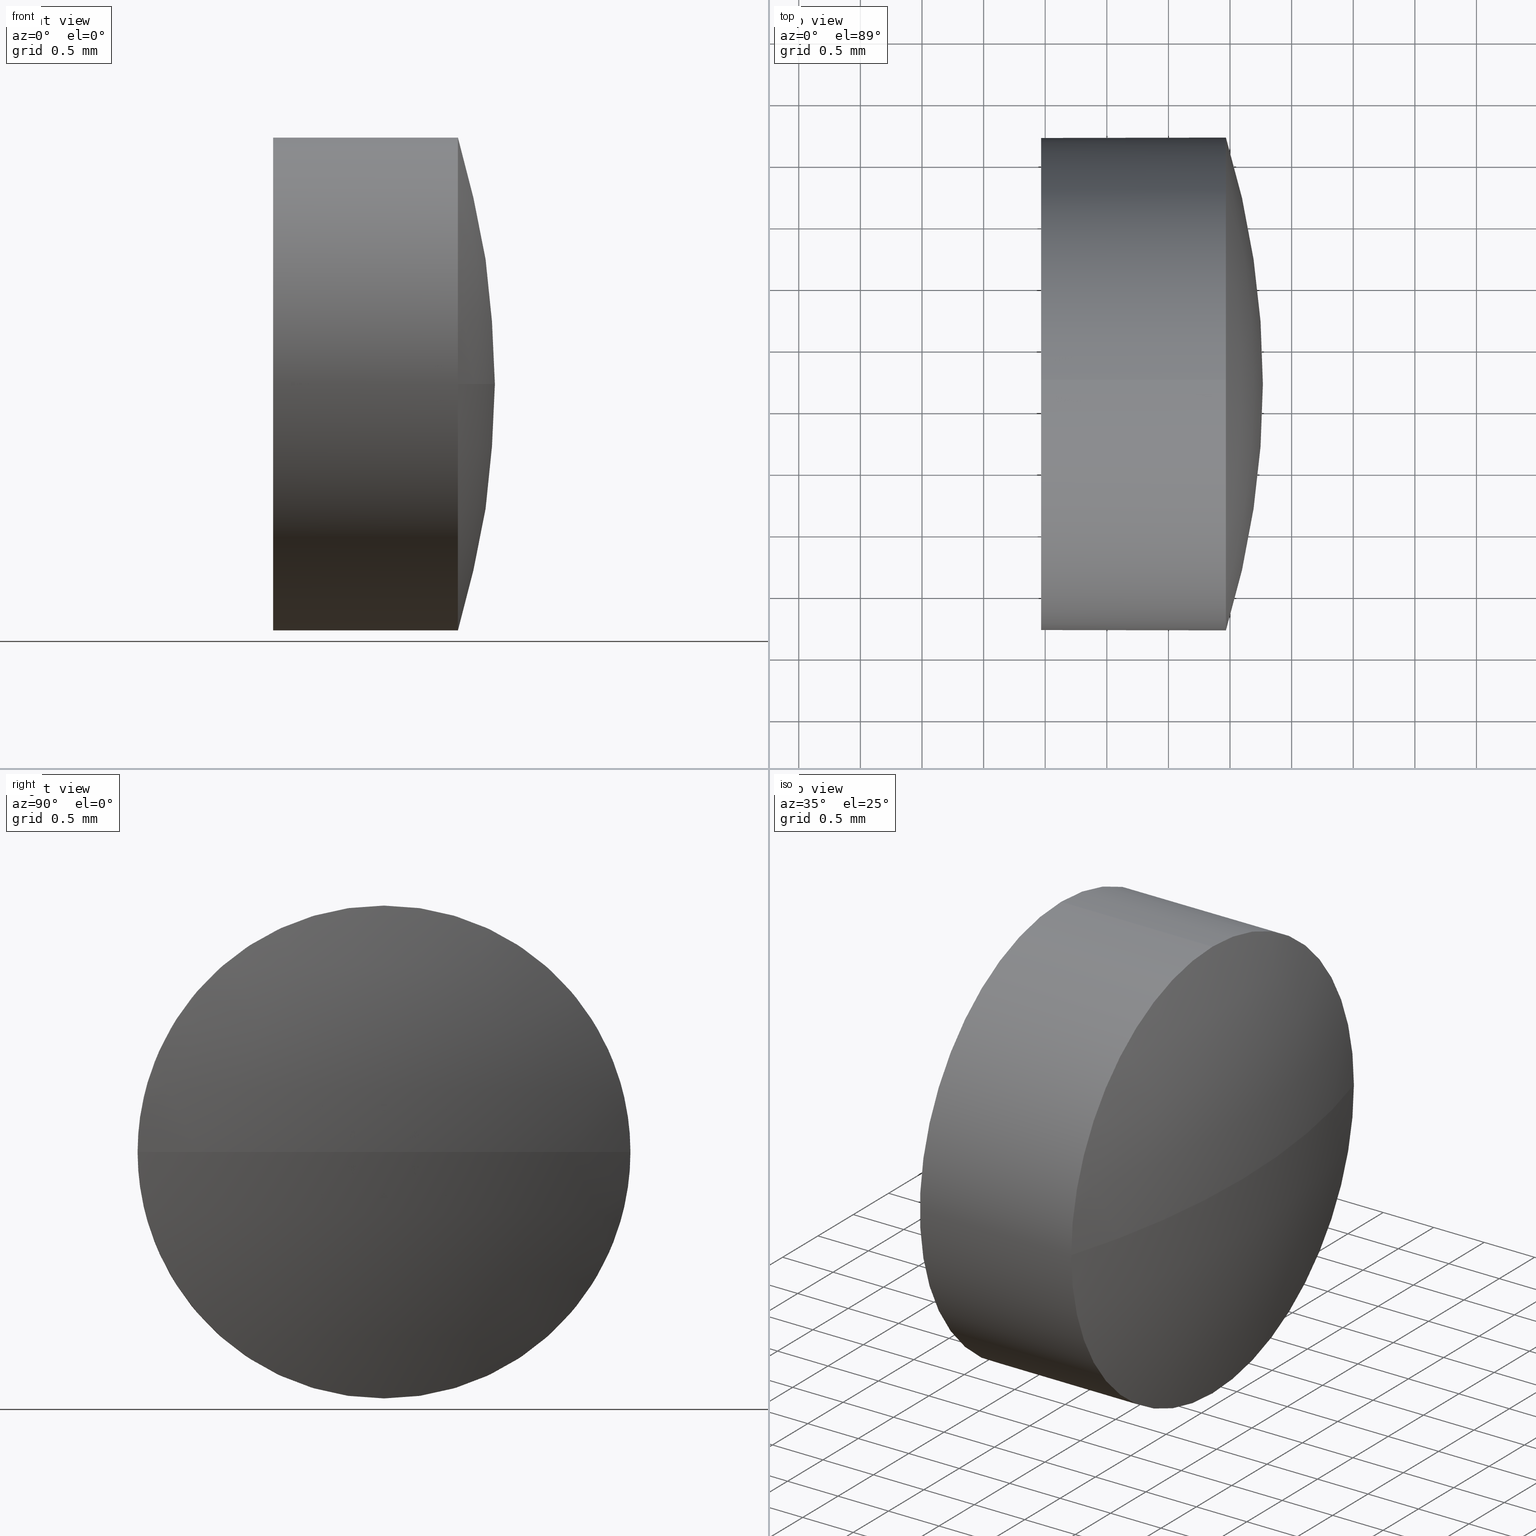
[diagram: canonical four-view strip — front | top / right | iso, engineering-drawing reading convention]
A machine part, canonical four-view strip (front | top / right | iso — engineering-drawing reading convention). The complete STEP part file that produces these views, byte-faithful:
ISO-10303-21;
HEADER;
FILE_DESCRIPTION (( 'STEP AP214' ),
    '1' );
FILE_NAME ('100347.STEP',
    '2019-06-03T02:52:31',
    ( '' ),
    ( '' ),
    'SwSTEP 2.0',
    'SolidWorks 2016',
    '' );
FILE_SCHEMA (( 'AUTOMOTIVE_DESIGN' ));
ENDSEC;

DATA;
#1 = DIRECTION ( 'NONE',  ( 0.0000000000000000000, 0.0000000000000000000, 1.000000000000000000 ) ) ;
#2 = DIRECTION ( 'NONE',  ( -1.000000000000000000, -0.0000000000000000000, -0.0000000000000000000 ) ) ;
#3 = SURFACE_STYLE_USAGE ( .BOTH. , #15 ) ;
#4 = ORIENTED_EDGE ( 'NONE', *, *, #134, .T. ) ;
#5 = AXIS2_PLACEMENT_3D ( 'NONE', #184, #138, #113 ) ;
#6 = MECHANICAL_DESIGN_GEOMETRIC_PRESENTATION_REPRESENTATION (  '', ( #25 ), #44 ) ;
#7 = CARTESIAN_POINT ( 'NONE',  ( 382.9667065319727000, 60.20486323735121900, 0.0000000000000000000 ) ) ;
#8 = VERTEX_POINT ( 'NONE', #140 ) ;
#9 = DIRECTION ( 'NONE',  ( -1.000000000000000000, -0.0000000000000000000, -0.0000000000000000000 ) ) ;
#10 = DIRECTION ( 'NONE',  ( -1.000000000000000000, -0.0000000000000000000, -0.0000000000000000000 ) ) ;
#11 = FILL_AREA_STYLE_COLOUR ( '', #93 ) ;
#12 = PRODUCT_DEFINITION_FORMATION_WITH_SPECIFIED_SOURCE ( '�κ�', '', #17, .NOT_KNOWN. ) ;
#13 = AXIS2_PLACEMENT_3D ( 'NONE', #52, #182, #63 ) ;
#14 =( NAMED_UNIT ( * ) SI_UNIT ( $, .STERADIAN. ) SOLID_ANGLE_UNIT ( ) );
#15 = SURFACE_SIDE_STYLE ('',( #88 ) ) ;
#16 = AXIS2_PLACEMENT_3D ( 'NONE', #119, #143, #99 ) ;
#17 = PRODUCT ( '100347', '100347', '', ( #30 ) ) ;
#18 = ORIENTED_EDGE ( 'NONE', *, *, #141, .T. ) ;
#19 = CYLINDRICAL_SURFACE ( 'NONE', #31, 2.000000000000001800 ) ;
#20 = VERTEX_POINT ( 'NONE', #78 ) ;
#21 = AXIS2_PLACEMENT_3D ( 'NONE', #102, #23, #144 ) ;
#22 = DIRECTION ( 'NONE',  ( 0.0000000000000000000, 0.0000000000000000000, 1.000000000000000000 ) ) ;
#23 = DIRECTION ( 'NONE',  ( 0.0000000000000000000, 1.224646799147353200E-016, -1.000000000000000000 ) ) ;
#24 =( LENGTH_UNIT ( ) NAMED_UNIT ( * ) SI_UNIT ( .MILLI., .METRE. ) );
#25 = STYLED_ITEM ( 'NONE', ( #72 ), #79 ) ;
#26 = CARTESIAN_POINT ( 'NONE',  ( 384.4667065319727000, 60.20486323735121900, 0.0000000000000000000 ) ) ;
#27 =( NAMED_UNIT ( * ) SI_UNIT ( $, .STERADIAN. ) SOLID_ANGLE_UNIT ( ) );
#28 = VECTOR ( 'NONE', #34, 1000.000000000000000 ) ;
#29 = FILL_AREA_STYLE ('',( #55 ) ) ;
#30 = PRODUCT_CONTEXT ( 'NONE', #40, 'mechanical' ) ;
#31 = AXIS2_PLACEMENT_3D ( 'NONE', #83, #10, #173 ) ;
#32 = PLANE ( 'NONE',  #13 ) ;
#33 = CYLINDRICAL_SURFACE ( 'NONE', #5, 2.000000000000001800 ) ;
#34 = DIRECTION ( 'NONE',  ( -1.000000000000000000, -0.0000000000000000000, -0.0000000000000000000 ) ) ;
#35 = ADVANCED_FACE ( 'NONE', ( #111 ), #123, .T. ) ;
#36 = CARTESIAN_POINT ( 'NONE',  ( 384.4667065319727000, 60.20486323735121900, 0.0000000000000000000 ) ) ;
#37 =( LENGTH_UNIT ( ) NAMED_UNIT ( * ) SI_UNIT ( .MILLI., .METRE. ) );
#38 = STYLED_ITEM ( 'NONE', ( #108 ), #178 ) ;
#39 = ADVANCED_FACE ( 'NONE', ( #82 ), #33, .T. ) ;
#40 = APPLICATION_CONTEXT ( 'automotive_design' ) ;
#41 = VERTEX_POINT ( 'NONE', #156 ) ;
#42 = CIRCLE ( 'NONE', #21, 6.816666666666678900 ) ;
#43 = APPLICATION_CONTEXT ( 'automotive_design' ) ;
#44 =( GEOMETRIC_REPRESENTATION_CONTEXT ( 3 ) GLOBAL_UNCERTAINTY_ASSIGNED_CONTEXT ( ( #133 ) ) GLOBAL_UNIT_ASSIGNED_CONTEXT ( ( #136, #89, #14 ) ) REPRESENTATION_CONTEXT ( 'NONE', 'WORKASPACE' ) );
#45 = ORIENTED_EDGE ( 'NONE', *, *, #112, .T. ) ;
#46 = FACE_OUTER_BOUND ( 'NONE', #50, .T. ) ;
#47 = ORIENTED_EDGE ( 'NONE', *, *, #141, .F. ) ;
#48 = CIRCLE ( 'NONE', #137, 2.000000000000001800 ) ;
#49 = PRESENTATION_LAYER_ASSIGNMENT (  '', '', ( #38 ) ) ;
#50 = EDGE_LOOP ( 'NONE', ( #165, #4, #161, #87, #94 ) ) ;
#51 = ORIENTED_EDGE ( 'NONE', *, *, #181, .F. ) ;
#52 = CARTESIAN_POINT ( 'NONE',  ( 382.9667065319727000, 60.20486323735121900, 0.0000000000000000000 ) ) ;
#53 = PRODUCT_DEFINITION_CONTEXT ( 'detailed design', #43, 'design' ) ;
#54 = DIRECTION ( 'NONE',  ( 0.0000000000000000000, 0.0000000000000000000, 1.000000000000000000 ) ) ;
#55 = FILL_AREA_STYLE_COLOUR ( '', #154 ) ;
#56 = ORIENTED_EDGE ( 'NONE', *, *, #104, .F. ) ;
#57 = DIRECTION ( 'NONE',  ( -1.000000000000000000, -0.0000000000000000000, -0.0000000000000000000 ) ) ;
#58 =( NAMED_UNIT ( * ) PLANE_ANGLE_UNIT ( ) SI_UNIT ( $, .RADIAN. ) );
#59 = ORIENTED_EDGE ( 'NONE', *, *, #85, .T. ) ;
#60 = APPLICATION_PROTOCOL_DEFINITION ( 'draft international standard', 'automotive_design', 1998, #43 ) ;
#61 = ORIENTED_EDGE ( 'NONE', *, *, #112, .F. ) ;
#62 = AXIS2_PLACEMENT_3D ( 'NONE', #67, #148, #150 ) ;
#63 = DIRECTION ( 'NONE',  ( 0.0000000000000000000, 0.0000000000000000000, -1.000000000000000000 ) ) ;
#64 = SHAPE_DEFINITION_REPRESENTATION ( #65, #79 ) ;
#65 = PRODUCT_DEFINITION_SHAPE ( 'NONE', 'NONE',  #116 ) ;
#66 = CARTESIAN_POINT ( 'NONE',  ( 384.4667065319727000, 60.20486323735121900, 0.0000000000000000000 ) ) ;
#67 = CARTESIAN_POINT ( 'NONE',  ( 0.0000000000000000000, 0.0000000000000000000, 0.0000000000000000000 ) ) ;
#68 = EDGE_LOOP ( 'NONE', ( #163, #147, #110, #164, #76 ) ) ;
#69 = VERTEX_POINT ( 'NONE', #157 ) ;
#70 = ADVANCED_FACE ( 'NONE', ( #172 ), #32, .F. ) ;
#71 = DIRECTION ( 'NONE',  ( -1.000000000000000000, -0.0000000000000000000, -0.0000000000000000000 ) ) ;
#72 = PRESENTATION_STYLE_ASSIGNMENT (( #3 ) ) ;
#73 =( GEOMETRIC_REPRESENTATION_CONTEXT ( 3 ) GLOBAL_UNCERTAINTY_ASSIGNED_CONTEXT ( ( #74 ) ) GLOBAL_UNIT_ASSIGNED_CONTEXT ( ( #24, #130, #27 ) ) REPRESENTATION_CONTEXT ( 'NONE', 'WORKASPACE' ) );
#74 = UNCERTAINTY_MEASURE_WITH_UNIT (LENGTH_MEASURE( 1.000000000000000100E-005 ), #24, 'distance_accuracy_value', 'NONE');
#75 = VERTEX_POINT ( 'NONE', #124 ) ;
#76 = ORIENTED_EDGE ( 'NONE', *, *, #153, .F. ) ;
#77 = SURFACE_STYLE_FILL_AREA ( #174 ) ;
#78 = CARTESIAN_POINT ( 'NONE',  ( 382.9667065319727000, 60.20486323735121900, -2.000000000000001800 ) ) ;
#79 = ADVANCED_BREP_SHAPE_REPRESENTATION ( '100347', ( #178, #62 ), #155 ) ;
#80 = ORIENTED_EDGE ( 'NONE', *, *, #92, .F. ) ;
#81 = DIRECTION ( 'NONE',  ( -0.0000000000000000000, 0.0000000000000000000, -1.000000000000000000 ) ) ;
#82 = FACE_OUTER_BOUND ( 'NONE', #68, .T. ) ;
#83 = CARTESIAN_POINT ( 'NONE',  ( 382.5385998379259700, 60.20486323735121900, 0.0000000000000000000 ) ) ;
#84 = CARTESIAN_POINT ( 'NONE',  ( 384.4667065319727000, 62.20486323735124000, 0.0000000000000000000 ) ) ;
#85 = EDGE_CURVE ( 'NONE', #8, #20, #91, .T. ) ;
#86 = CARTESIAN_POINT ( 'NONE',  ( 384.4667065319727000, 58.20486323735119800, -2.449293598294732500E-016 ) ) ;
#87 = ORIENTED_EDGE ( 'NONE', *, *, #177, .F. ) ;
#88 = SURFACE_STYLE_FILL_AREA ( #29 ) ;
#89 =( NAMED_UNIT ( * ) PLANE_ANGLE_UNIT ( ) SI_UNIT ( $, .RADIAN. ) );
#90 = ADVANCED_FACE ( 'NONE', ( #96 ), #167, .T. ) ;
#91 = CIRCLE ( 'NONE', #166, 2.000000000000001800 ) ;
#92 = EDGE_CURVE ( 'NONE', #120, #41, #132, .T. ) ;
#93 = COLOUR_RGB ( '',1.000000000000000000, 1.000000000000000000, 1.000000000000000000 ) ;
#94 = ORIENTED_EDGE ( 'NONE', *, *, #104, .T. ) ;
#95 = AXIS2_PLACEMENT_3D ( 'NONE', #170, #81, #109 ) ;
#96 = FACE_OUTER_BOUND ( 'NONE', #107, .T. ) ;
#97 = CLOSED_SHELL ( 'NONE', ( #105, #35, #90, #39, #70 ) ) ;
#98 = CIRCLE ( 'NONE', #145, 2.000000000000001800 ) ;
#99 = DIRECTION ( 'NONE',  ( 0.0000000000000000000, 0.0000000000000000000, 1.000000000000000000 ) ) ;
#100 = EDGE_LOOP ( 'NONE', ( #59, #125 ) ) ;
#101 = DIRECTION ( 'NONE',  ( 0.0000000000000000000, 0.0000000000000000000, 1.000000000000000000 ) ) ;
#102 = CARTESIAN_POINT ( 'NONE',  ( 377.9500398653060000, 60.20486323735121900, 0.0000000000000000000 ) ) ;
#103 =( NAMED_UNIT ( * ) SI_UNIT ( $, .STERADIAN. ) SOLID_ANGLE_UNIT ( ) );
#104 = EDGE_CURVE ( 'NONE', #75, #120, #135, .T. ) ;
#105 = ADVANCED_FACE ( 'NONE', ( #46 ), #19, .T. ) ;
#106 = MECHANICAL_DESIGN_GEOMETRIC_PRESENTATION_REPRESENTATION (  '', ( #38 ), #73 ) ;
#107 = EDGE_LOOP ( 'NONE', ( #47, #45, #56, #169 ) ) ;
#108 = PRESENTATION_STYLE_ASSIGNMENT (( #118 ) ) ;
#109 = DIRECTION ( 'NONE',  ( 0.0000000000000000000, 1.000000000000000000, 0.0000000000000000000 ) ) ;
#110 = ORIENTED_EDGE ( 'NONE', *, *, #149, .T. ) ;
#111 = FACE_OUTER_BOUND ( 'NONE', #152, .T. ) ;
#112 = EDGE_CURVE ( 'NONE', #69, #120, #183, .T. ) ;
#113 = DIRECTION ( 'NONE',  ( 0.0000000000000000000, 0.0000000000000000000, 1.000000000000000000 ) ) ;
#114 = SURFACE_SIDE_STYLE ('',( #77 ) ) ;
#115 = CARTESIAN_POINT ( 'NONE',  ( 377.9500398653060000, 60.20486323735121900, 0.0000000000000000000 ) ) ;
#116 = PRODUCT_DEFINITION ( 'δ֪', '', #12, #53 ) ;
#117 = AXIS2_PLACEMENT_3D ( 'NONE', #126, #171, #128 ) ;
#118 = SURFACE_STYLE_USAGE ( .BOTH. , #114 ) ;
#119 = CARTESIAN_POINT ( 'NONE',  ( 382.9667065319727000, 60.20486323735121900, 0.0000000000000000000 ) ) ;
#120 = VERTEX_POINT ( 'NONE', #84 ) ;
#121 = VERTEX_POINT ( 'NONE', #86 ) ;
#122 = VECTOR ( 'NONE', #158, 1000.000000000000000 ) ;
#123 = SPHERICAL_SURFACE ( 'NONE', #117, 6.816666666666682400 ) ;
#124 = CARTESIAN_POINT ( 'NONE',  ( 384.4667065319727000, 60.20486323735121900, 2.000000000000001800 ) ) ;
#125 = ORIENTED_EDGE ( 'NONE', *, *, #153, .T. ) ;
#126 = CARTESIAN_POINT ( 'NONE',  ( 377.9500398653060000, 60.20486323735121900, 0.0000000000000000000 ) ) ;
#127 = LINE ( 'NONE', #175, #28 ) ;
#128 = DIRECTION ( 'NONE',  ( 0.0000000000000000000, 1.000000000000000000, 0.0000000000000000000 ) ) ;
#129 = DIRECTION ( 'NONE',  ( -1.000000000000000000, -0.0000000000000000000, -0.0000000000000000000 ) ) ;
#130 =( NAMED_UNIT ( * ) PLANE_ANGLE_UNIT ( ) SI_UNIT ( $, .RADIAN. ) );
#131 = DIRECTION ( 'NONE',  ( -0.0000000000000000000, 0.0000000000000000000, 1.000000000000000000 ) ) ;
#132 = CIRCLE ( 'NONE', #186, 2.000000000000001800 ) ;
#133 = UNCERTAINTY_MEASURE_WITH_UNIT (LENGTH_MEASURE( 1.000000000000000100E-005 ), #136, 'distance_accuracy_value', 'NONE');
#134 = EDGE_CURVE ( 'NONE', #41, #20, #127, .T. ) ;
#135 = CIRCLE ( 'NONE', #159, 2.000000000000001800 ) ;
#136 =( LENGTH_UNIT ( ) NAMED_UNIT ( * ) SI_UNIT ( .MILLI., .METRE. ) );
#137 = AXIS2_PLACEMENT_3D ( 'NONE', #26, #129, #54 ) ;
#138 = DIRECTION ( 'NONE',  ( -1.000000000000000000, -0.0000000000000000000, -0.0000000000000000000 ) ) ;
#139 = CIRCLE ( 'NONE', #16, 2.000000000000001800 ) ;
#140 = CARTESIAN_POINT ( 'NONE',  ( 382.9667065319727000, 60.20486323735121900, 2.000000000000001800 ) ) ;
#141 = EDGE_CURVE ( 'NONE', #69, #121, #42, .T. ) ;
#142 = CARTESIAN_POINT ( 'NONE',  ( 382.5385998379259700, 60.20486323735121900, 2.000000000000001800 ) ) ;
#143 = DIRECTION ( 'NONE',  ( -1.000000000000000000, -0.0000000000000000000, -0.0000000000000000000 ) ) ;
#144 = DIRECTION ( 'NONE',  ( 0.0000000000000000000, 1.000000000000000000, 1.224646799147353900E-016 ) ) ;
#145 = AXIS2_PLACEMENT_3D ( 'NONE', #66, #2, #1 ) ;
#146 = UNCERTAINTY_MEASURE_WITH_UNIT (LENGTH_MEASURE( 1.000000000000000100E-005 ), #37, 'distance_accuracy_value', 'NONE');
#147 = ORIENTED_EDGE ( 'NONE', *, *, #181, .T. ) ;
#148 = DIRECTION ( 'NONE',  ( 0.0000000000000000000, 0.0000000000000000000, 1.000000000000000000 ) ) ;
#149 = EDGE_CURVE ( 'NONE', #121, #75, #48, .T. ) ;
#150 = DIRECTION ( 'NONE',  ( 1.000000000000000000, 0.0000000000000000000, 0.0000000000000000000 ) ) ;
#151 = APPLICATION_PROTOCOL_DEFINITION ( 'draft international standard', 'automotive_design', 1998, #40 ) ;
#152 = EDGE_LOOP ( 'NONE', ( #61, #18, #51, #80 ) ) ;
#153 = EDGE_CURVE ( 'NONE', #20, #8, #139, .T. ) ;
#154 = COLOUR_RGB ( '',1.000000000000000000, 1.000000000000000000, 1.000000000000000000 ) ;
#155 =( GEOMETRIC_REPRESENTATION_CONTEXT ( 3 ) GLOBAL_UNCERTAINTY_ASSIGNED_CONTEXT ( ( #146 ) ) GLOBAL_UNIT_ASSIGNED_CONTEXT ( ( #37, #58, #103 ) ) REPRESENTATION_CONTEXT ( 'NONE', 'WORKASPACE' ) );
#156 = CARTESIAN_POINT ( 'NONE',  ( 384.4667065319727000, 60.20486323735121900, -2.000000000000001800 ) ) ;
#157 = CARTESIAN_POINT ( 'NONE',  ( 384.7667065319727200, 60.20486323735121900, 0.0000000000000000000 ) ) ;
#158 = DIRECTION ( 'NONE',  ( -1.000000000000000000, -0.0000000000000000000, -0.0000000000000000000 ) ) ;
#159 = AXIS2_PLACEMENT_3D ( 'NONE', #36, #57, #160 ) ;
#160 = DIRECTION ( 'NONE',  ( 0.0000000000000000000, 0.0000000000000000000, 1.000000000000000000 ) ) ;
#161 = ORIENTED_EDGE ( 'NONE', *, *, #85, .F. ) ;
#162 = CARTESIAN_POINT ( 'NONE',  ( 384.4667065319727000, 60.20486323735121900, 0.0000000000000000000 ) ) ;
#163 = ORIENTED_EDGE ( 'NONE', *, *, #134, .F. ) ;
#164 = ORIENTED_EDGE ( 'NONE', *, *, #177, .T. ) ;
#165 = ORIENTED_EDGE ( 'NONE', *, *, #92, .T. ) ;
#166 = AXIS2_PLACEMENT_3D ( 'NONE', #7, #9, #22 ) ;
#167 = SPHERICAL_SURFACE ( 'NONE', #95, 6.816666666666682400 ) ;
#168 = AXIS2_PLACEMENT_3D ( 'NONE', #115, #131, #185 ) ;
#169 = ORIENTED_EDGE ( 'NONE', *, *, #149, .F. ) ;
#170 = CARTESIAN_POINT ( 'NONE',  ( 377.9500398653060000, 60.20486323735121900, 0.0000000000000000000 ) ) ;
#171 = DIRECTION ( 'NONE',  ( -0.0000000000000000000, 0.0000000000000000000, -1.000000000000000000 ) ) ;
#172 = FACE_OUTER_BOUND ( 'NONE', #100, .T. ) ;
#173 = DIRECTION ( 'NONE',  ( 0.0000000000000000000, 0.0000000000000000000, 1.000000000000000000 ) ) ;
#174 = FILL_AREA_STYLE ('',( #11 ) ) ;
#175 = CARTESIAN_POINT ( 'NONE',  ( 382.5385998379259700, 60.20486323735121900, -2.000000000000001800 ) ) ;
#176 = PRODUCT_RELATED_PRODUCT_CATEGORY ( 'part', '', ( #17 ) ) ;
#177 = EDGE_CURVE ( 'NONE', #75, #8, #180, .T. ) ;
#178 = MANIFOLD_SOLID_BREP ( '��ת1', #97 ) ;
#179 = PRESENTATION_LAYER_ASSIGNMENT (  '', '', ( #25 ) ) ;
#180 = LINE ( 'NONE', #142, #122 ) ;
#181 = EDGE_CURVE ( 'NONE', #41, #121, #98, .T. ) ;
#182 = DIRECTION ( 'NONE',  ( 1.000000000000000000, 0.0000000000000000000, 0.0000000000000000000 ) ) ;
#183 = CIRCLE ( 'NONE', #168, 6.816666666666693100 ) ;
#184 = CARTESIAN_POINT ( 'NONE',  ( 382.5385998379259700, 60.20486323735121900, 0.0000000000000000000 ) ) ;
#185 = DIRECTION ( 'NONE',  ( 1.000000000000000000, 0.0000000000000000000, 0.0000000000000000000 ) ) ;
#186 = AXIS2_PLACEMENT_3D ( 'NONE', #162, #71, #101 ) ;
ENDSEC;
END-ISO-10303-21;
